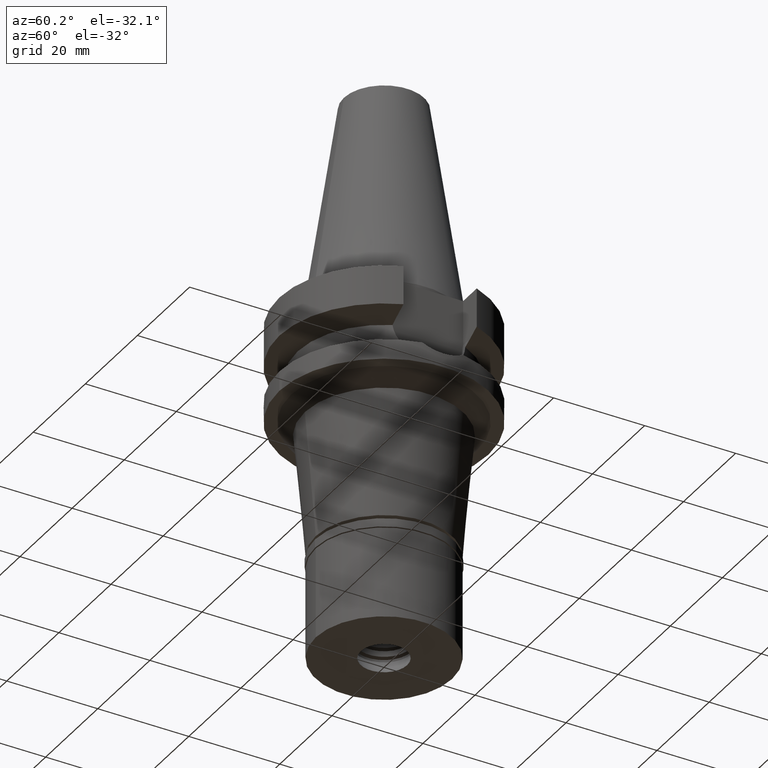
[diagram: clean part render]
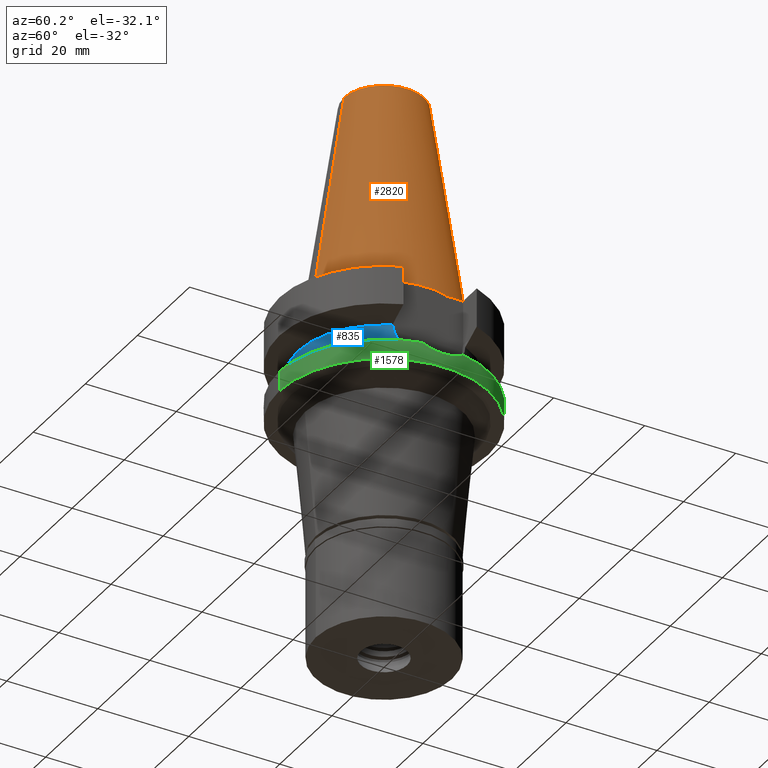
[diagram: same view with three faces highlighted in distinct colors, each labeled with its STEP entity id]
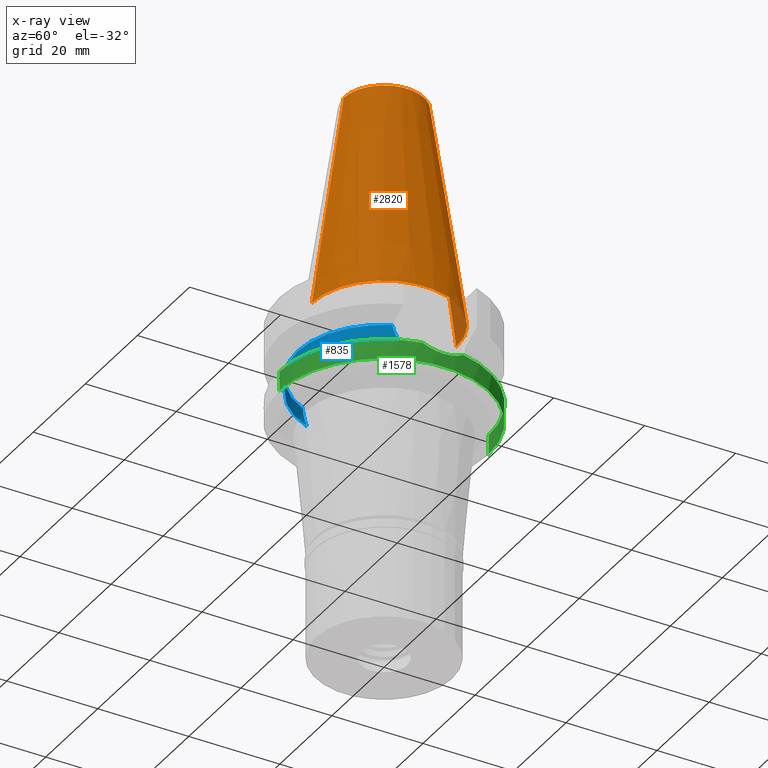
[diagram: x-ray of the same camera — body ghosted, the three highlighted faces saturated]
A machine part, auxiliary view with three faces highlighted in distinct colors.
The next image is the same camera in x-ray (body ghosted, the three faces saturated) — at least one of them is partly hidden behind the body in this view.
Their STEP definitions:

[orange] entity #2820 — the highlighted conical surface has half-angle 8.297 deg.
#232 = VERTEX_POINT ( 'NONE', #2622 ) ;
#327 = DIRECTION ( 'NONE',  ( 0.0000000000000000000, -0.1443043893539925626, -0.9895333461855498891 ) ) ;
#352 = FACE_OUTER_BOUND ( 'NONE', #2864, .T. ) ;
#410 = ORIENTED_EDGE ( 'NONE', *, *, #1661, .T. ) ;
#431 = ORIENTED_EDGE ( 'NONE', *, *, #1046, .F. ) ;
#450 = CARTESIAN_POINT ( 'NONE',  ( 0.0000000000000000000, 0.0000000000000000000, -3.410605131648000255E-13 ) ) ;
#580 = CARTESIAN_POINT ( 'NONE',  ( 0.0000000000000000000, 0.0000000000000000000, 24.19999999999999929 ) ) ;
#598 = CIRCLE ( 'NONE', #2095, 15.87500000000000000 ) ;
#663 = VERTEX_POINT ( 'NONE', #2057 ) ;
#702 = DIRECTION ( 'NONE',  ( 0.0000000000000000000, 0.0000000000000000000, -1.000000000000000000 ) ) ;
#812 = LINE ( 'NONE', #1528, #2878 ) ;
#1033 = EDGE_CURVE ( 'NONE', #232, #663, #598, .T. ) ;
#1046 = EDGE_CURVE ( 'NONE', #1968, #232, #2323, .T. ) ;
#1064 = DIRECTION ( 'NONE',  ( 0.0000000000000000000, 0.0000000000000000000, -1.000000000000000000 ) ) ;
#1150 = DIRECTION ( 'NONE',  ( 0.0000000000000000000, 1.000000000000000000, 0.0000000000000000000 ) ) ;
#1287 = VECTOR ( 'NONE', #2608, 1000.000000000000114 ) ;
#1333 = ORIENTED_EDGE ( 'NONE', *, *, #1033, .F. ) ;
#1373 = CARTESIAN_POINT ( 'NONE',  ( 0.0000000000000000000, 8.816791732783000768, 48.39999999999999858 ) ) ;
#1406 = CIRCLE ( 'NONE', #2940, 8.816791732783000768 ) ;
#1511 = AXIS2_PLACEMENT_3D ( 'NONE', #580, #1064, #1538 ) ;
#1528 = CARTESIAN_POINT ( 'NONE',  ( 0.0000000000000000000, -8.816791732783000768, 48.39999999999999858 ) ) ;
#1538 = DIRECTION ( 'NONE',  ( 0.0000000000000000000, -1.000000000000000000, 0.0000000000000000000 ) ) ;
#1658 = DIRECTION ( 'NONE',  ( 0.0000000000000000000, 1.000000000000000000, 0.0000000000000000000 ) ) ;
#1661 = EDGE_CURVE ( 'NONE', #1950, #663, #812, .T. ) ;
#1672 = CARTESIAN_POINT ( 'NONE',  ( 0.0000000000000000000, 0.0000000000000000000, 48.39999999999999858 ) ) ;
#1950 = VERTEX_POINT ( 'NONE', #2389 ) ;
#1968 = VERTEX_POINT ( 'NONE', #2133 ) ;
#2057 = CARTESIAN_POINT ( 'NONE',  ( 0.0000000000000000000, -15.87500000000000000, -3.410605131648000255E-13 ) ) ;
#2087 = ORIENTED_EDGE ( 'NONE', *, *, #2174, .T. ) ;
#2095 = AXIS2_PLACEMENT_3D ( 'NONE', #450, #702, #1150 ) ;
#2129 = DIRECTION ( 'NONE',  ( 0.0000000000000000000, 0.0000000000000000000, -1.000000000000000000 ) ) ;
#2133 = CARTESIAN_POINT ( 'NONE',  ( 0.0000000000000000000, 8.816791732783000768, 48.39999999999999858 ) ) ;
#2174 = EDGE_CURVE ( 'NONE', #1968, #1950, #1406, .T. ) ;
#2323 = LINE ( 'NONE', #1373, #1287 ) ;
#2389 = CARTESIAN_POINT ( 'NONE',  ( 0.0000000000000000000, -8.816791732783000768, 48.39999999999999858 ) ) ;
#2608 = DIRECTION ( 'NONE',  ( 0.0000000000000000000, 0.1443043893539925626, -0.9895333461855498891 ) ) ;
#2622 = CARTESIAN_POINT ( 'NONE',  ( 0.0000000000000000000, 15.87500000000000000, -1.136868377215999875E-13 ) ) ;
#2820 = ADVANCED_FACE ( 'NONE', ( #352 ), #2838, .T. ) ;
#2838 = CONICAL_SURFACE ( 'NONE', #1511, 12.34589586639000025, 0.1448099680379422438 ) ;
#2864 = EDGE_LOOP ( 'NONE', ( #2087, #410, #1333, #431 ) ) ;
#2878 = VECTOR ( 'NONE', #327, 1000.000000000000114 ) ;
#2940 = AXIS2_PLACEMENT_3D ( 'NONE', #1672, #2129, #1658 ) ;

[blue] entity #835 — the highlighted cylindrical surface (partial cylindrical patch) has radius 19 mm, axis along (0, 0, -1).
#11 = DIRECTION ( 'NONE',  ( 0.0000000000000000000, 0.0000000000000000000, -1.000000000000000000 ) ) ;
#164 = EDGE_CURVE ( 'NONE', #1184, #1770, #3061, .T. ) ;
#221 = CARTESIAN_POINT ( 'NONE',  ( 17.40050758145360632, -7.630565565504821457, -13.51508960615575639 ) ) ;
#333 = CARTESIAN_POINT ( 'NONE',  ( -17.53683850617920470, -7.312769253757402943, -14.31902481035358221 ) ) ;
#347 = CIRCLE ( 'NONE', #2837, 19.00000000000000000 ) ;
#369 = CARTESIAN_POINT ( 'NONE',  ( -17.26628505277002290, -7.929743581435687361, -12.45264543972447768 ) ) ;
#384 = VERTEX_POINT ( 'NONE', #2707 ) ;
#441 = B_SPLINE_CURVE_WITH_KNOTS ( 'NONE', 3,
 ( #926, #2635, #1535, #333, #1236, #1073, #2980, #860, #623, #1549, #1300, #2022, #604, #369, #1103 ),
 .UNSPECIFIED., .F., .F.,
 ( 4, 2, 2, 1, 1, 1, 2, 2, 4 ),
 ( 0.0000000000000000000, 0.2500000000000050515, 0.3750000000000084377, 0.4375000000000100475, 0.4687500000000112688, 0.4843750000000111022, 0.4921875000000109357, 0.5000000000000107692, 1.000000000000000000 ),
 .UNSPECIFIED. ) ;
#469 = ORIENTED_EDGE ( 'NONE', *, *, #2235, .T. ) ;
#604 = CARTESIAN_POINT ( 'NONE',  ( -17.32791110612699725, -7.797407457944076192, -13.04850003609909770 ) ) ;
#623 = CARTESIAN_POINT ( 'NONE',  ( -17.42911851124947731, -7.564954524478351594, -13.70217975922368936 ) ) ;
#835 = ADVANCED_FACE ( 'NONE', ( #2882 ), #2173, .T. ) ;
#860 = CARTESIAN_POINT ( 'NONE',  ( -17.43825996257356792, -7.543902337116145773, -13.75966030978032606 ) ) ;
#898 = CARTESIAN_POINT ( 'NONE',  ( 17.61322740977063006, -7.137115852429626095, -14.73814199214981180 ) ) ;
#915 = CARTESIAN_POINT ( 'NONE',  ( 0.0000000000000000000, 0.0000000000000000000, -15.32339055352999857 ) ) ;
#926 = CARTESIAN_POINT ( 'NONE',  ( -17.75736593456000278, -6.758398853743999624, -15.32339055352999857 ) ) ;
#992 = CARTESIAN_POINT ( 'NONE',  ( 0.0000000000000000000, 0.0000000000000000000, 0.0000000000000000000 ) ) ;
#1073 = CARTESIAN_POINT ( 'NONE',  ( -17.47454244283665048, -7.459747681737654901, -13.97656327324755487 ) ) ;
#1103 = CARTESIAN_POINT ( 'NONE',  ( -17.23531622822000386, -7.996491147958001200, -11.87660607717000083 ) ) ;
#1111 = CARTESIAN_POINT ( 'NONE',  ( 17.36640948879380630, -7.707982828176216827, -13.27282317297279590 ) ) ;
#1120 = CARTESIAN_POINT ( 'NONE',  ( 17.32020187248921772, -7.811452264172603854, -12.90108126290883739 ) ) ;
#1184 = VERTEX_POINT ( 'NONE', #2041 ) ;
#1199 = ORIENTED_EDGE ( 'NONE', *, *, #164, .F. ) ;
#1207 = DIRECTION ( 'NONE',  ( 0.0000000000000000000, -1.000000000000000000, 0.0000000000000000000 ) ) ;
#1236 = CARTESIAN_POINT ( 'NONE',  ( -17.51072787952266552, -7.374839633740275069, -14.18046796381867480 ) ) ;
#1300 = CARTESIAN_POINT ( 'NONE',  ( -17.42272085252563230, -7.579664040946562764, -13.66132223665699996 ) ) ;
#1331 = EDGE_CURVE ( 'NONE', #384, #1770, #2979, .T. ) ;
#1341 = CARTESIAN_POINT ( 'NONE',  ( 17.27395772732930013, -7.913379800553383525, -12.45762674819685323 ) ) ;
#1391 = CARTESIAN_POINT ( 'NONE',  ( 17.41902886904462022, -7.588145056447470616, -13.63749496349985257 ) ) ;
#1535 = CARTESIAN_POINT ( 'NONE',  ( -17.62113139274647722, -7.108367418537760329, -14.74095000876842043 ) ) ;
#1549 = CARTESIAN_POINT ( 'NONE',  ( -17.42527060194236199, -7.573803216158514928, -13.67765102011162881 ) ) ;
#1682 = CARTESIAN_POINT ( 'NONE',  ( 0.0000000000000000000, 0.0000000000000000000, -11.87660944646999894 ) ) ;
#1723 = EDGE_LOOP ( 'NONE', ( #2764, #2585, #1199, #469 ) ) ;
#1770 = VERTEX_POINT ( 'NONE', #2092 ) ;
#1842 = DIRECTION ( 'NONE',  ( 0.0000000000000000000, 0.0000000000000000000, 1.000000000000000000 ) ) ;
#1844 = CARTESIAN_POINT ( 'NONE',  ( 17.75736593456000278, -6.758398853743999624, -15.32339055352999857 ) ) ;
#1892 = AXIS2_PLACEMENT_3D ( 'NONE', #915, #1842, #2113 ) ;
#1955 = CARTESIAN_POINT ( 'NONE',  ( -17.23531622822000386, -7.996491147958001200, -11.87660607717000083 ) ) ;
#2022 = CARTESIAN_POINT ( 'NONE',  ( -17.42163631457474438, -7.582155995863029574, -13.65434988445094966 ) ) ;
#2041 = CARTESIAN_POINT ( 'NONE',  ( 17.23531135313000107, -7.996501749111999402, -11.87660739354000050 ) ) ;
#2066 = CARTESIAN_POINT ( 'NONE',  ( 17.23531135313000107, -7.996501749111999402, -11.87660739354000050 ) ) ;
#2078 = CARTESIAN_POINT ( 'NONE',  ( 17.33753429471035901, -7.772924035424132683, -13.04956639070095292 ) ) ;
#2092 = CARTESIAN_POINT ( 'NONE',  ( 17.75736593456000278, -6.758398853743999624, -15.32339055352999857 ) ) ;
#2113 = DIRECTION ( 'NONE',  ( 0.0000000000000000000, -1.000000000000000000, 0.0000000000000000000 ) ) ;
#2173 = CYLINDRICAL_SURFACE ( 'NONE', #2540, 19.00000000000000000 ) ;
#2200 = DIRECTION ( 'NONE',  ( 0.0000000000000000000, 0.0000000000000000000, -1.000000000000000000 ) ) ;
#2235 = EDGE_CURVE ( 'NONE', #1184, #2560, #347, .T. ) ;
#2299 = CARTESIAN_POINT ( 'NONE',  ( 17.41455400305665435, -7.598412036639295764, -13.60833259783796478 ) ) ;
#2327 = CARTESIAN_POINT ( 'NONE',  ( 17.38156622602346246, -7.673725376885411009, -13.38458314353863798 ) ) ;
#2360 = CARTESIAN_POINT ( 'NONE',  ( 17.25079912589399456, -7.963111191519515408, -12.16468723334847724 ) ) ;
#2540 = AXIS2_PLACEMENT_3D ( 'NONE', #992, #11, #1207 ) ;
#2560 = VERTEX_POINT ( 'NONE', #1955 ) ;
#2574 = CARTESIAN_POINT ( 'NONE',  ( 17.41740973184774077, -7.591861673420408074, -13.62698225823840303 ) ) ;
#2585 = ORIENTED_EDGE ( 'NONE', *, *, #1331, .T. ) ;
#2635 = CARTESIAN_POINT ( 'NONE',  ( -17.68527465925482289, -6.947815190946712960, -15.03067689337112256 ) ) ;
#2707 = CARTESIAN_POINT ( 'NONE',  ( -17.75736593456000278, -6.758398853743999624, -15.32339055352999857 ) ) ;
#2764 = ORIENTED_EDGE ( 'NONE', *, *, #2954, .F. ) ;
#2837 = AXIS2_PLACEMENT_3D ( 'NONE', #1682, #2200, #2874 ) ;
#2874 = DIRECTION ( 'NONE',  ( 0.0000000000000000000, -1.000000000000000000, 0.0000000000000000000 ) ) ;
#2882 = FACE_OUTER_BOUND ( 'NONE', #1723, .T. ) ;
#2954 = EDGE_CURVE ( 'NONE', #384, #2560, #441, .T. ) ;
#2979 = CIRCLE ( 'NONE', #1892, 19.00000000000000000 ) ;
#2980 = CARTESIAN_POINT ( 'NONE',  ( -17.45719485031835205, -7.500152504345086513, -13.87559139681874676 ) ) ;
#3014 = CARTESIAN_POINT ( 'NONE',  ( 17.41029288300091338, -7.608179589571716583, -13.58035844458879282 ) ) ;
#3048 = CARTESIAN_POINT ( 'NONE',  ( 17.50086807617385531, -7.400179108631100178, -14.16641331418214378 ) ) ;
#3061 = B_SPLINE_CURVE_WITH_KNOTS ( 'NONE', 3,
 ( #2066, #2360, #1341, #1120, #2078, #1111, #2327, #221, #3014, #2299, #2574, #1391, #3048, #898, #1844 ),
 .UNSPECIFIED., .F., .F.,
 ( 4, 2, 2, 1, 1, 1, 2, 2, 4 ),
 ( 0.0000000000000000000, 0.2500000000000048295, 0.3750000000000078271, 0.4375000000000092704, 0.4687500000000104916, 0.4843750000000111022, 0.4921875000000112688, 0.5000000000000114353, 1.000000000000000000 ),
 .UNSPECIFIED. ) ;

[green] entity #1578 — the highlighted cylindrical surface (partial cylindrical patch) has radius 23 mm, axis along (0, 0, -1).
#21 = ORIENTED_EDGE ( 'NONE', *, *, #118, .F. ) ;
#46 = CARTESIAN_POINT ( 'NONE',  ( 0.0000000000000000000, 0.0000000000000000000, -22.00000000000000000 ) ) ;
#74 = ORIENTED_EDGE ( 'NONE', *, *, #2408, .T. ) ;
#89 = CARTESIAN_POINT ( 'NONE',  ( 0.0000000000000000000, 23.00000000000000000, -22.00000000000000000 ) ) ;
#108 = VECTOR ( 'NONE', #2868, 1000.000000000000000 ) ;
#118 = EDGE_CURVE ( 'NONE', #308, #940, #2806, .T. ) ;
#147 = B_SPLINE_CURVE_WITH_KNOTS ( 'NONE', 3,
 ( #2135, #2354, #2595, #3043, #1435, #2559, #175, #1404, #2107, #676, #1149, #1371 ),
 .UNSPECIFIED., .F., .F.,
 ( 4, 2, 2, 2, 2, 4 ),
 ( 0.0000000000000000000, 0.1250000000000000833, 0.2500000000000001665, 0.3750000000000002220, 0.5000000000000003331, 1.000000000000000000 ),
 .UNSPECIFIED. ) ;
#160 = ORIENTED_EDGE ( 'NONE', *, *, #2664, .T. ) ;
#175 = CARTESIAN_POINT ( 'NONE',  ( 22.79384994476060200, 3.078194260844435703, -18.39090388519267805 ) ) ;
#308 = VERTEX_POINT ( 'NONE', #1680 ) ;
#446 = CARTESIAN_POINT ( 'NONE',  ( 22.99999992639000013, 0.0000000000000000000, -19.00000004853999869 ) ) ;
#451 = AXIS2_PLACEMENT_3D ( 'NONE', #46, #1213, #1002 ) ;
#505 = AXIS2_PLACEMENT_3D ( 'NONE', #1264, #2222, #2475 ) ;
#562 = ORIENTED_EDGE ( 'NONE', *, *, #2606, .T. ) ;
#589 = VERTEX_POINT ( 'NONE', #2569 ) ;
#626 = ORIENTED_EDGE ( 'NONE', *, *, #1739, .T. ) ;
#676 = CARTESIAN_POINT ( 'NONE',  ( 22.95875233037788377, 1.572923669463147656, -18.88437573714319839 ) ) ;
#775 = VERTEX_POINT ( 'NONE', #446 ) ;
#780 = DIRECTION ( 'NONE',  ( 0.0000000000000000000, 0.0000000000000000000, -1.000000000000000000 ) ) ;
#830 = DIRECTION ( 'NONE',  ( 0.0000000000000000000, -1.000000000000000000, 0.0000000000000000000 ) ) ;
#910 = CARTESIAN_POINT ( 'NONE',  ( 23.00000000000000000, -0.3931526665512350416, -19.00000004853999869 ) ) ;
#929 = CARTESIAN_POINT ( 'NONE',  ( 22.68600827432193867, -3.805342575376382985, -18.05513094321618439 ) ) ;
#933 = DIRECTION ( 'NONE',  ( 0.0000000000000000000, -2.359143140496999862E-14, -1.000000000000000000 ) ) ;
#940 = VERTEX_POINT ( 'NONE', #89 ) ;
#958 = VERTEX_POINT ( 'NONE', #1917 ) ;
#981 = EDGE_CURVE ( 'NONE', #775, #958, #1824, .T. ) ;
#1002 = DIRECTION ( 'NONE',  ( 0.0000000000000000000, -1.000000000000000000, 0.0000000000000000000 ) ) ;
#1003 = CIRCLE ( 'NONE', #451, 23.00000000000000000 ) ;
#1051 = VERTEX_POINT ( 'NONE', #2108 ) ;
#1071 = DIRECTION ( 'NONE',  ( 0.0000000000000000000, 0.0000000000000000000, -1.000000000000000000 ) ) ;
#1131 = CARTESIAN_POINT ( 'NONE',  ( 22.98996162911325669, -0.7842375963832025620, -18.97135316458441778 ) ) ;
#1149 = CARTESIAN_POINT ( 'NONE',  ( 23.00000000000000000, 0.7862355847379831619, -19.00000004853999869 ) ) ;
#1177 = CARTESIAN_POINT ( 'NONE',  ( 22.91802043911402365, -1.949765184626052861, -18.76286823604801057 ) ) ;
#1208 = CARTESIAN_POINT ( 'NONE',  ( 22.55786346208000026, 4.488072640470000430, -17.63279163029000074 ) ) ;
#1213 = DIRECTION ( 'NONE',  ( 0.0000000000000000000, 0.0000000000000000000, 1.000000000000000000 ) ) ;
#1217 = CYLINDRICAL_SURFACE ( 'NONE', #2781, 23.00000000000000000 ) ;
#1264 = CARTESIAN_POINT ( 'NONE',  ( 0.0000000000000000000, 0.0000000000000000000, -17.63279163029000074 ) ) ;
#1359 = CARTESIAN_POINT ( 'NONE',  ( 22.95994303217320720, -1.370896436015859754, -18.88483825998575938 ) ) ;
#1360 = CARTESIAN_POINT ( 'NONE',  ( 0.0000000000000000000, 23.00000000000000000, -17.63279163029000074 ) ) ;
#1371 = CARTESIAN_POINT ( 'NONE',  ( 22.99999992639000013, 0.0000000000000000000, -19.00000004853999869 ) ) ;
#1387 = CARTESIAN_POINT ( 'NONE',  ( 22.94751164332519977, -1.564913576617714241, -18.84890893458505445 ) ) ;
#1404 = CARTESIAN_POINT ( 'NONE',  ( 22.84082834884262425, 2.707662377488192718, -18.53364122414361859 ) ) ;
#1422 = CARTESIAN_POINT ( 'NONE',  ( 22.79382839943263761, -3.078353033991704457, -18.39083661364519884 ) ) ;
#1435 = CARTESIAN_POINT ( 'NONE',  ( 22.71387272379424260, 3.621212823059658970, -18.14221964371703422 ) ) ;
#1452 = CARTESIAN_POINT ( 'NONE',  ( 0.0000000000000000000, -23.00000000000000000, -17.63279163029000074 ) ) ;
#1469 = LINE ( 'NONE', #1452, #108 ) ;
#1578 = ADVANCED_FACE ( 'NONE', ( #2472 ), #1217, .T. ) ;
#1668 = CARTESIAN_POINT ( 'NONE',  ( 22.90107051855675735, -2.139520487728951981, -18.71308315119121701 ) ) ;
#1680 = CARTESIAN_POINT ( 'NONE',  ( 0.0000000000000000000, 23.00000000000000000, -17.63279163029000074 ) ) ;
#1739 = EDGE_CURVE ( 'NONE', #1051, #940, #1003, .T. ) ;
#1824 = B_SPLINE_CURVE_WITH_KNOTS ( 'NONE', 3,
 ( #2311, #910, #1131, #1359, #1387, #1177, #1668, #2581, #1858, #1422, #2571, #929, #1837, #1899 ),
 .UNSPECIFIED., .F., .F.,
 ( 4, 2, 2, 2, 2, 2, 4 ),
 ( 0.0000000000000000000, 0.2499999999999998335, 0.3749999999999997780, 0.4999999999999997780, 0.6249999999999997780, 0.7499999999999996669, 1.000000000000000000 ),
 .UNSPECIFIED. ) ;
#1837 = CARTESIAN_POINT ( 'NONE',  ( 22.62427058113360445, -4.154298469570207430, -17.85694985747973007 ) ) ;
#1858 = CARTESIAN_POINT ( 'NONE',  ( 22.84080641712208504, -2.707846509723657480, -18.53357647311457868 ) ) ;
#1899 = CARTESIAN_POINT ( 'NONE',  ( 22.55786346208000026, -4.488072640470000430, -17.63279163029000074 ) ) ;
#1917 = CARTESIAN_POINT ( 'NONE',  ( 22.55786346208000026, -4.488072640470000430, -17.63279163029000074 ) ) ;
#1997 = ORIENTED_EDGE ( 'NONE', *, *, #981, .T. ) ;
#1998 = CIRCLE ( 'NONE', #505, 23.00000000000000000 ) ;
#2046 = VECTOR ( 'NONE', #933, 1000.000000000000000 ) ;
#2101 = CIRCLE ( 'NONE', #2884, 23.00000000000001066 ) ;
#2107 = CARTESIAN_POINT ( 'NONE',  ( 22.86246591986040144, 2.518690513554725285, -18.59844559479545367 ) ) ;
#2108 = CARTESIAN_POINT ( 'NONE',  ( 0.0000000000000000000, -23.00000000000000000, -22.00000000000000000 ) ) ;
#2135 = CARTESIAN_POINT ( 'NONE',  ( 22.55786346208000026, 4.488072640470000430, -17.63279163029000074 ) ) ;
#2222 = DIRECTION ( 'NONE',  ( 0.0000000000000000000, 0.0000000000000000000, -1.000000000000000000 ) ) ;
#2311 = CARTESIAN_POINT ( 'NONE',  ( 22.99999992639000013, 0.0000000000000000000, -19.00000004853999869 ) ) ;
#2354 = CARTESIAN_POINT ( 'NONE',  ( 22.59106981774830558, 4.321171501109175139, -17.74488018230207587 ) ) ;
#2408 = EDGE_CURVE ( 'NONE', #2529, #775, #147, .T. ) ;
#2472 = FACE_OUTER_BOUND ( 'NONE', #2739, .T. ) ;
#2475 = DIRECTION ( 'NONE',  ( 0.0000000000000000000, 1.000000000000000000, 0.0000000000000000000 ) ) ;
#2529 = VERTEX_POINT ( 'NONE', #1208 ) ;
#2537 = EDGE_CURVE ( 'NONE', #589, #1051, #1469, .T. ) ;
#2559 = CARTESIAN_POINT ( 'NONE',  ( 22.76839081391525710, 3.260916461278256850, -18.31261956910736899 ) ) ;
#2569 = CARTESIAN_POINT ( 'NONE',  ( 0.0000000000000000000, -23.00000000000000000, -17.63279163029000074 ) ) ;
#2571 = CARTESIAN_POINT ( 'NONE',  ( 22.76865285391766847, -3.259194394697921382, -18.31343685964093737 ) ) ;
#2581 = CARTESIAN_POINT ( 'NONE',  ( 22.86232386206850009, -2.520064768853091053, -18.59802578062378231 ) ) ;
#2595 = CARTESIAN_POINT ( 'NONE',  ( 22.62310749162323731, 4.150469455943922803, -17.85047678965163698 ) ) ;
#2606 = EDGE_CURVE ( 'NONE', #958, #589, #2101, .T. ) ;
#2664 = EDGE_CURVE ( 'NONE', #308, #2529, #1998, .T. ) ;
#2715 = CARTESIAN_POINT ( 'NONE',  ( 0.0000000000000000000, 0.0000000000000000000, -17.63279163029000074 ) ) ;
#2739 = EDGE_LOOP ( 'NONE', ( #562, #2811, #626, #21, #160, #74, #1997 ) ) ;
#2781 = AXIS2_PLACEMENT_3D ( 'NONE', #2899, #780, #830 ) ;
#2806 = LINE ( 'NONE', #1360, #2046 ) ;
#2811 = ORIENTED_EDGE ( 'NONE', *, *, #2537, .T. ) ;
#2868 = DIRECTION ( 'NONE',  ( 0.0000000000000000000, 2.359143140496999862E-14, -1.000000000000000000 ) ) ;
#2884 = AXIS2_PLACEMENT_3D ( 'NONE', #2715, #1071, #2937 ) ;
#2899 = CARTESIAN_POINT ( 'NONE',  ( 0.0000000000000000000, 0.0000000000000000000, 0.0000000000000000000 ) ) ;
#2937 = DIRECTION ( 'NONE',  ( 0.9807766722643714852, -0.1951335930638943839, 0.0000000000000000000 ) ) ;
#3043 = CARTESIAN_POINT ( 'NONE',  ( 22.68436164960525403, 3.801463643411712390, -18.04868611502571341 ) ) ;